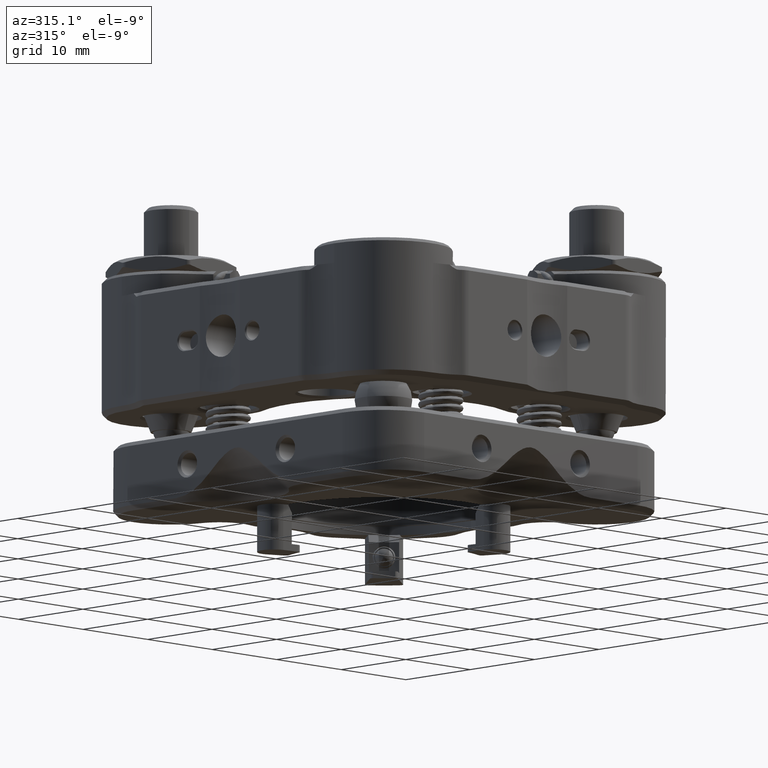
[diagram: clean part render]
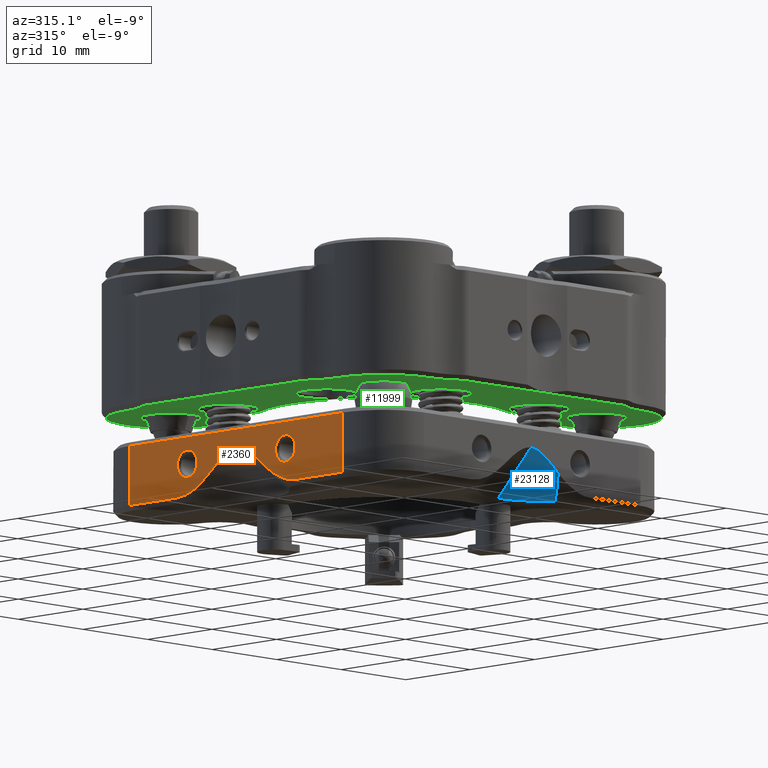
[diagram: same view with three faces highlighted in distinct colors, each labeled with its STEP entity id]
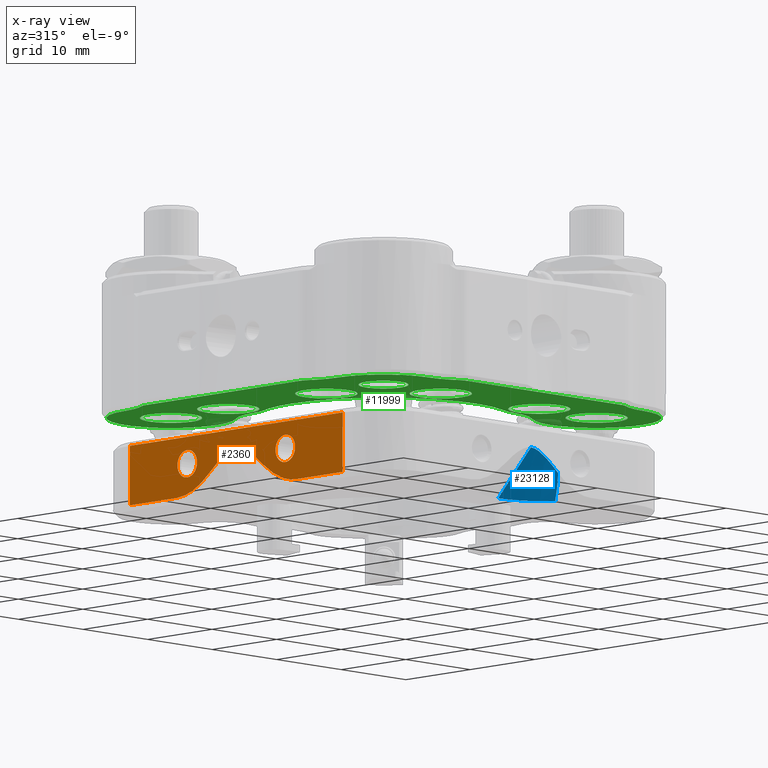
[diagram: x-ray of the same camera — body ghosted, the three highlighted faces saturated]
A machine part, auxiliary view with three faces highlighted in distinct colors.
The next image is the same camera in x-ray (body ghosted, the three faces saturated) — at least one of them is partly hidden behind the body in this view.
Their STEP definitions:

[orange] entity #2360 — the highlighted planar face has unit normal (1, -0, 0).
#70 = CARTESIAN_POINT ( 'NONE',  ( -22.86000000000001009, 4.229481576568355550, -17.76057014813169133 ) ) ;
#152 = LINE ( 'NONE', #4107, #17089 ) ;
#577 = LINE ( 'NONE', #6024, #6643 ) ;
#595 = ORIENTED_EDGE ( 'NONE', *, *, #12178, .F. ) ;
#685 = CARTESIAN_POINT ( 'NONE',  ( -22.86000000000008114, -3.597634822816767386, -17.22644066595375989 ) ) ;
#745 = ORIENTED_EDGE ( 'NONE', *, *, #17298, .T. ) ;
#957 = CARTESIAN_POINT ( 'NONE',  ( -22.86000000000012378, -7.619999999999807372, -17.85200000000059717 ) ) ;
#1491 = CARTESIAN_POINT ( 'NONE',  ( -22.86000000000012733, -7.628391849384790646, -19.70508273283734368 ) ) ;
#1556 = CARTESIAN_POINT ( 'NONE',  ( -22.85999999999998522, 6.959163889735418884, -19.48390881809314479 ) ) ;
#1578 = CARTESIAN_POINT ( 'NONE',  ( -22.86000000000012378, -7.619999999999807372, -16.32700000000059504 ) ) ;
#1695 = AXIS2_PLACEMENT_3D ( 'NONE', #23827, #14586, #6947 ) ;
#1705 = DIRECTION ( 'NONE',  ( -1.000000000000000000, -0.000000000000000000, -0.000000000000000000 ) ) ;
#1881 = AXIS2_PLACEMENT_3D ( 'NONE', #22517, #18330, #20292 ) ;
#1919 = CARTESIAN_POINT ( 'NONE',  ( -22.85999999999996390, 9.229662777454413103, -19.93900000000070349 ) ) ;
#1933 = CARTESIAN_POINT ( 'NONE',  ( -22.86000000000013799, -9.229662777454128886, -19.93900000000070349 ) ) ;
#2360 = ADVANCED_FACE ( 'NONE', ( #8489, #8611, #18088 ), #17970, .F. ) ;
#2654 = CARTESIAN_POINT ( 'NONE',  ( -22.86000000000008114, -2.949250967876838825, -16.71418190035217322 ) ) ;
#3218 = CARTESIAN_POINT ( 'NONE',  ( -22.86000000000012733, -7.406939087338871630, -19.63650124086021265 ) ) ;
#3431 = CARTESIAN_POINT ( 'NONE',  ( -22.86000000000020904, -16.50999999999981327, -19.93900000000070349 ) ) ;
#3520 = CARTESIAN_POINT ( 'NONE',  ( -22.85999999999997456, 8.758351000378873152, -19.93900000000067507 ) ) ;
#3549 = EDGE_LOOP ( 'NONE', ( #595, #22914 ) ) ;
#3698 = CIRCLE ( 'NONE', #7654, 1.525000000000000355 ) ;
#3712 = CARTESIAN_POINT ( 'NONE',  ( -22.86000000000010957, -6.751668379958792876, -19.38633800442222466 ) ) ;
#4107 = CARTESIAN_POINT ( 'NONE',  ( -22.86000000000020904, -16.50999999999981327, -13.33500000000058883 ) ) ;
#4343 = EDGE_CURVE ( 'NONE', #9726, #13690, #152, .T. ) ;
#4532 = CARTESIAN_POINT ( 'NONE',  ( -22.86000000000003496, 1.592808549479525215, -15.80559546031105889 ) ) ;
#4645 = CARTESIAN_POINT ( 'NONE',  ( -22.86000000000001009, 4.229481576568355550, -17.76057014813169133 ) ) ;
#4660 = CARTESIAN_POINT ( 'NONE',  ( -22.86000000000024102, -16.50999999999981682, -25.52700000000059433 ) ) ;
#4771 = CARTESIAN_POINT ( 'NONE',  ( -22.85999999999988930, 16.51000000000024670, -25.52700000000059433 ) ) ;
#4869 = VERTEX_POINT ( 'NONE', #18984 ) ;
#5452 = CARTESIAN_POINT ( 'NONE',  ( -22.86000000000009180, -4.938237052535475513, -18.36817643280802059 ) ) ;
#6024 = CARTESIAN_POINT ( 'NONE',  ( -22.86000000000020904, -16.50999999999981327, -19.93900000000070349 ) ) ;
#6045 = VECTOR ( 'NONE', #10335, 1000.000000000000000 ) ;
#6276 = CARTESIAN_POINT ( 'NONE',  ( -22.85999999999988930, 16.50999999999994117, -19.93900000000070349 ) ) ;
#6495 = CARTESIAN_POINT ( 'NONE',  ( -22.86000000000003496, 1.944302519124479156, -16.01567109791675847 ) ) ;
#6534 = ORIENTED_EDGE ( 'NONE', *, *, #21756, .T. ) ;
#6643 = VECTOR ( 'NONE', #17575, 1000.000000000000000 ) ;
#6712 = EDGE_LOOP ( 'NONE', ( #18223, #18714, #7326, #23973, #10705, #13264, #6534, #745 ) ) ;
#6947 = DIRECTION ( 'NONE',  ( 0.000000000000000000, 0.000000000000000000, 1.000000000000000000 ) ) ;
#7191 = CIRCLE ( 'NONE', #10792, 1.525000000000000355 ) ;
#7236 = VERTEX_POINT ( 'NONE', #7470 ) ;
#7326 = ORIENTED_EDGE ( 'NONE', *, *, #22657, .T. ) ;
#7470 = CARTESIAN_POINT ( 'NONE',  ( -22.86000000000009180, -4.229481576568060675, -17.76057014813168777 ) ) ;
#7654 = AXIS2_PLACEMENT_3D ( 'NONE', #18288, #13020, #14614 ) ;
#7685 = DIRECTION ( 'NONE',  ( 9.694748537171207385E-15, 1.000000000000000000, 0.000000000000000000 ) ) ;
#7819 = VECTOR ( 'NONE', #18184, 1000.000000000000000 ) ;
#8108 = EDGE_CURVE ( 'NONE', #7236, #21044, #10352, .T. ) ;
#8201 = CARTESIAN_POINT ( 'NONE',  ( -22.86000000000004917, -0.4007461880109177699, -15.39096868739139978 ) ) ;
#8489 = FACE_BOUND ( 'NONE', #15102, .T. ) ;
#8611 = FACE_OUTER_BOUND ( 'NONE', #6712, .T. ) ;
#8715 = LINE ( 'NONE', #4660, #6045 ) ;
#9240 = DIRECTION ( 'NONE',  ( 0.000000000000000000, 0.000000000000000000, 1.000000000000000000 ) ) ;
#9484 = CARTESIAN_POINT ( 'NONE',  ( -22.85999999999997812, 7.620000000000189289, -14.80200000000059468 ) ) ;
#9616 = ORIENTED_EDGE ( 'NONE', *, *, #21072, .F. ) ;
#9726 = VERTEX_POINT ( 'NONE', #24072 ) ;
#10317 = CARTESIAN_POINT ( 'NONE',  ( -22.86000000000002075, 3.917564185806425847, -17.49316767527163918 ) ) ;
#10327 = LINE ( 'NONE', #4771, #7819 ) ;
#10335 = DIRECTION ( 'NONE',  ( -0.000000000000000000, 0.000000000000000000, 1.000000000000000000 ) ) ;
#10352 = B_SPLINE_CURVE_WITH_KNOTS ( 'NONE', 3,
 ( #14944, #5452, #14823, #3712, #23934, #3218, #1491, #13115, #12987, #22064 ),
 .UNSPECIFIED., .F., .F.,
 ( 4, 2, 2, 2, 4 ),
 ( 0.000000000000000000, 0.002769708619595131777, 0.003462135774493916348, 0.004154562929392701352, 0.005539417239190271361 ),
 .UNSPECIFIED. ) ;
#10567 = CARTESIAN_POINT ( 'NONE',  ( -22.86000000000001364, 3.601951637394633643, -17.23002469957911487 ) ) ;
#10705 = ORIENTED_EDGE ( 'NONE', *, *, #4343, .T. ) ;
#10722 = LINE ( 'NONE', #3431, #11797 ) ;
#10792 = AXIS2_PLACEMENT_3D ( 'NONE', #1578, #1705, #9240 ) ;
#10838 = B_SPLINE_CURVE_WITH_KNOTS ( 'NONE', 3,
 ( #1919, #3520, #22499, #16602, #1556, #22746, #13172, #70 ),
 .UNSPECIFIED., .F., .F.,
 ( 4, 2, 2, 4 ),
 ( 6.938893903907228378E-18, 0.001386642077695687987, 0.002773284155391369035, 0.005546568310782731132 ),
 .UNSPECIFIED. ) ;
#11348 = VERTEX_POINT ( 'NONE', #18278 ) ;
#11797 = VECTOR ( 'NONE', #16503, 1000.000000000000000 ) ;
#12056 = CARTESIAN_POINT ( 'NONE',  ( -22.86000000000007404, -2.618854091105971005, -16.46626433496506081 ) ) ;
#12178 = EDGE_CURVE ( 'NONE', #14735, #12535, #7191, .T. ) ;
#12219 = DIRECTION ( 'NONE',  ( 1.000000000000000000, -9.694748537171207385E-15, 0.000000000000000000 ) ) ;
#12457 = CARTESIAN_POINT ( 'NONE',  ( -22.86000000000020904, -16.50999999999981327, -25.52700000000059433 ) ) ;
#12535 = VERTEX_POINT ( 'NONE', #957 ) ;
#12539 = CIRCLE ( 'NONE', #1881, 1.525000000000000355 ) ;
#12543 = EDGE_CURVE ( 'NONE', #4869, #9726, #8715, .T. ) ;
#12803 = B_SPLINE_CURVE_WITH_KNOTS ( 'NONE', 3,
 ( #16227, #13770, #685, #2654, #12056, #23372, #19534, #15986, #17685, #8201, #19645, #15857, #15737, #21257, #23232, #4532, #6495, #14020, #21507, #10567, #10317, #4645 ),
 .UNSPECIFIED., .F., .F.,
 ( 4, 2, 2, 2, 2, 2, 2, 2, 2, 2, 4 ),
 ( 0.003324732755800691511, 0.004565652370401299814, 0.005806571985001908985, 0.007047491599602517288, 0.007667951406902821440, 0.008288411214203126459, 0.008908871021503429743, 0.009529330828803734763, 0.01077025044340434307, 0.01201117005800495310, 0.01325208967260556314 ),
 .UNSPECIFIED. ) ;
#12987 = CARTESIAN_POINT ( 'NONE',  ( -22.86000000000013088, -8.758282109641140067, -19.93900000000067152 ) ) ;
#13020 = DIRECTION ( 'NONE',  ( -1.000000000000000000, -0.000000000000000000, -0.000000000000000000 ) ) ;
#13115 = CARTESIAN_POINT ( 'NONE',  ( -22.86000000000013799, -8.300355303882561486, -19.87419358907744993 ) ) ;
#13172 = CARTESIAN_POINT ( 'NONE',  ( -22.86000000000000654, 4.938132215087363441, -18.36808655711086757 ) ) ;
#13264 = ORIENTED_EDGE ( 'NONE', *, *, #21903, .F. ) ;
#13690 = VERTEX_POINT ( 'NONE', #19931 ) ;
#13770 = CARTESIAN_POINT ( 'NONE',  ( -22.86000000000009180, -3.915345317823418547, -17.49126547038309454 ) ) ;
#13990 = VERTEX_POINT ( 'NONE', #6276 ) ;
#14020 = CARTESIAN_POINT ( 'NONE',  ( -22.86000000000002075, 2.626460137870049838, -16.47194224105629701 ) ) ;
#14331 = VERTEX_POINT ( 'NONE', #22863 ) ;
#14431 = EDGE_CURVE ( 'NONE', #12535, #14735, #3698, .T. ) ;
#14586 = DIRECTION ( 'NONE',  ( -1.000000000000000000, -0.000000000000000000, -0.000000000000000000 ) ) ;
#14614 = DIRECTION ( 'NONE',  ( 0.000000000000000000, 0.000000000000000000, 1.000000000000000000 ) ) ;
#14735 = VERTEX_POINT ( 'NONE', #18015 ) ;
#14823 = CARTESIAN_POINT ( 'NONE',  ( -22.86000000000009891, -5.699345662576267735, -18.89226132215419440 ) ) ;
#14944 = CARTESIAN_POINT ( 'NONE',  ( -22.86000000000009180, -4.229481576568060675, -17.76057014813168777 ) ) ;
#15102 = EDGE_LOOP ( 'NONE', ( #18716, #9616 ) ) ;
#15737 = CARTESIAN_POINT ( 'NONE',  ( -22.86000000000004562, 0.4261284073514840509, -15.39512893873771127 ) ) ;
#15857 = CARTESIAN_POINT ( 'NONE',  ( -22.86000000000004917, 0.2210194410077958582, -15.36804623913340606 ) ) ;
#15986 = CARTESIAN_POINT ( 'NONE',  ( -22.86000000000006338, -1.001132595067075748, -15.55173237971501621 ) ) ;
#16144 = DIRECTION ( 'NONE',  ( -9.694748537171207385E-15, -1.000000000000000000, 0.000000000000000000 ) ) ;
#16227 = CARTESIAN_POINT ( 'NONE',  ( -22.86000000000009180, -4.229481576568060675, -17.76057014813168777 ) ) ;
#16503 = DIRECTION ( 'NONE',  ( -9.694748537171207385E-15, -1.000000000000000000, -2.789044477472713610E-31 ) ) ;
#16602 = CARTESIAN_POINT ( 'NONE',  ( -22.85999999999997812, 7.402412177531792814, -19.64811938651006074 ) ) ;
#16739 = VERTEX_POINT ( 'NONE', #22045 ) ;
#17089 = VECTOR ( 'NONE', #7685, 1000.000000000000000 ) ;
#17298 = EDGE_CURVE ( 'NONE', #11348, #14331, #10838, .T. ) ;
#17575 = DIRECTION ( 'NONE',  ( -9.694748537171207385E-15, -1.000000000000000000, -2.789044477472713610E-31 ) ) ;
#17685 = CARTESIAN_POINT ( 'NONE',  ( -22.86000000000005983, -0.8027894956768356627, -15.48365370289159060 ) ) ;
#17970 = PLANE ( 'NONE',  #19037 ) ;
#18015 = CARTESIAN_POINT ( 'NONE',  ( -22.86000000000012378, -7.619999999999807372, -14.80200000000059468 ) ) ;
#18088 = FACE_BOUND ( 'NONE', #3549, .T. ) ;
#18184 = DIRECTION ( 'NONE',  ( -0.000000000000000000, 0.000000000000000000, 1.000000000000000000 ) ) ;
#18223 = ORIENTED_EDGE ( 'NONE', *, *, #20290, .F. ) ;
#18278 = CARTESIAN_POINT ( 'NONE',  ( -22.85999999999996390, 9.229662777454413103, -19.93900000000070349 ) ) ;
#18288 = CARTESIAN_POINT ( 'NONE',  ( -22.86000000000012378, -7.619999999999807372, -16.32700000000059504 ) ) ;
#18330 = DIRECTION ( 'NONE',  ( -1.000000000000000000, -0.000000000000000000, -0.000000000000000000 ) ) ;
#18714 = ORIENTED_EDGE ( 'NONE', *, *, #8108, .T. ) ;
#18716 = ORIENTED_EDGE ( 'NONE', *, *, #18972, .F. ) ;
#18972 = EDGE_CURVE ( 'NONE', #19796, #16739, #21761, .T. ) ;
#18984 = CARTESIAN_POINT ( 'NONE',  ( -22.86000000000024102, -16.50999999999981682, -19.93900000000070349 ) ) ;
#19037 = AXIS2_PLACEMENT_3D ( 'NONE', #12457, #12219, #16144 ) ;
#19534 = CARTESIAN_POINT ( 'NONE',  ( -22.86000000000006693, -1.572199453205341158, -15.79425654322220574 ) ) ;
#19645 = CARTESIAN_POINT ( 'NONE',  ( -22.86000000000005272, -0.1962796670156755907, -15.36601400228406078 ) ) ;
#19796 = VERTEX_POINT ( 'NONE', #9484 ) ;
#19931 = CARTESIAN_POINT ( 'NONE',  ( -22.85999999999988930, 16.51000000000024670, -13.33500000000058883 ) ) ;
#20290 = EDGE_CURVE ( 'NONE', #7236, #14331, #12803, .T. ) ;
#20292 = DIRECTION ( 'NONE',  ( 0.000000000000000000, 0.000000000000000000, 1.000000000000000000 ) ) ;
#21044 = VERTEX_POINT ( 'NONE', #1933 ) ;
#21072 = EDGE_CURVE ( 'NONE', #16739, #19796, #12539, .T. ) ;
#21257 = CARTESIAN_POINT ( 'NONE',  ( -22.86000000000003496, 0.8271567452071758586, -15.49118638754346478 ) ) ;
#21507 = CARTESIAN_POINT ( 'NONE',  ( -22.86000000000002075, 2.956705564381371776, -16.71990106494079953 ) ) ;
#21756 = EDGE_CURVE ( 'NONE', #13990, #11348, #577, .T. ) ;
#21761 = CIRCLE ( 'NONE', #1695, 1.525000000000000355 ) ;
#21903 = EDGE_CURVE ( 'NONE', #13990, #13690, #10327, .T. ) ;
#22045 = CARTESIAN_POINT ( 'NONE',  ( -22.85999999999997812, 7.620000000000189289, -17.85200000000059717 ) ) ;
#22064 = CARTESIAN_POINT ( 'NONE',  ( -22.86000000000013799, -9.229662777454128886, -19.93900000000070349 ) ) ;
#22499 = CARTESIAN_POINT ( 'NONE',  ( -22.85999999999997812, 8.299961974694802791, -19.87418613520488009 ) ) ;
#22517 = CARTESIAN_POINT ( 'NONE',  ( -22.85999999999997812, 7.620000000000189289, -16.32700000000059504 ) ) ;
#22657 = EDGE_CURVE ( 'NONE', #21044, #4869, #10722, .T. ) ;
#22746 = CARTESIAN_POINT ( 'NONE',  ( -22.86000000000000298, 5.698729411158517166, -18.89167187656438429 ) ) ;
#22863 = CARTESIAN_POINT ( 'NONE',  ( -22.86000000000001009, 4.229481576568355550, -17.76057014813169133 ) ) ;
#22914 = ORIENTED_EDGE ( 'NONE', *, *, #14431, .F. ) ;
#23232 = CARTESIAN_POINT ( 'NONE',  ( -22.86000000000003851, 1.025063637092831215, -15.56071604602862557 ) ) ;
#23372 = CARTESIAN_POINT ( 'NONE',  ( -22.86000000000006338, -1.930427279923352613, -16.00699962772288387 ) ) ;
#23827 = CARTESIAN_POINT ( 'NONE',  ( -22.85999999999997812, 7.620000000000189289, -16.32700000000059504 ) ) ;
#23934 = CARTESIAN_POINT ( 'NONE',  ( -22.86000000000012022, -6.968623685975321891, -19.47722792319549612 ) ) ;
#23973 = ORIENTED_EDGE ( 'NONE', *, *, #12543, .T. ) ;
#24072 = CARTESIAN_POINT ( 'NONE',  ( -22.86000000000024102, -16.50999999999981682, -13.33500000000058883 ) ) ;

[blue] entity #23128 — the highlighted conical surface has half-angle 45 deg.
#141 = ORIENTED_EDGE ( 'NONE', *, *, #9574, .F. ) ;
#751 = CONICAL_SURFACE ( 'NONE', #11811, 9.524999999999987921, 0.7853981633974471688 ) ;
#956 = FACE_OUTER_BOUND ( 'NONE', #1494, .T. ) ;
#1137 = CARTESIAN_POINT ( 'NONE',  ( 2.622963139611198091, -22.85999999999999233, -16.46929230700211377 ) ) ;
#1194 = CARTESIAN_POINT ( 'NONE',  ( -3.396974368463647391E-13, -17.78000000000001535, -20.44700000000059248 ) ) ;
#1289 = ORIENTED_EDGE ( 'NONE', *, *, #24141, .T. ) ;
#1494 = EDGE_LOOP ( 'NONE', ( #1289, #6246, #141, #21741 ) ) ;
#1536 = CARTESIAN_POINT ( 'NONE',  ( 4.229481576567869716, -22.86000000000000298, -17.76057014813174817 ) ) ;
#1650 = VERTEX_POINT ( 'NONE', #1536 ) ;
#2150 = LINE ( 'NONE', #8643, #23555 ) ;
#2263 = CARTESIAN_POINT ( 'NONE',  ( -4.406197628981090020E-13, -25.39999999999999858, -20.44700000000059248 ) ) ;
#2851 = CARTESIAN_POINT ( 'NONE',  ( 1.936523536324799677, -22.85999999999999943, -16.01078407317872276 ) ) ;
#3042 = B_SPLINE_CURVE_WITH_KNOTS ( 'NONE', 3,
 ( #6773, #23269, #15891, #4561 ),
 .UNSPECIFIED., .F., .F.,
 ( 4, 4 ),
 ( 5.553824967135426632E-18, 0.003885240765737124624 ),
 .UNSPECIFIED. ) ;
#4561 = CARTESIAN_POINT ( 'NONE',  ( 4.229481576567869716, -22.86000000000000298, -17.76057014813174817 ) ) ;
#6246 = ORIENTED_EDGE ( 'NONE', *, *, #22034, .T. ) ;
#6681 = VERTEX_POINT ( 'NONE', #15687 ) ;
#6689 = CARTESIAN_POINT ( 'NONE',  ( 1.010252391307756348, -22.85999999999998522, -15.55514775209780609 ) ) ;
#6773 = CARTESIAN_POINT ( 'NONE',  ( 5.963776396871508290, -20.65681846350861406, -20.44700000000059248 ) ) ;
#8585 = CARTESIAN_POINT ( 'NONE',  ( -4.406197628981090020E-13, -25.40000000000000213, -22.35200000000060072 ) ) ;
#8643 = CARTESIAN_POINT ( 'NONE',  ( -3.142500148989315220E-13, -15.87500000000001421, -22.35200000000059717 ) ) ;
#8650 = CARTESIAN_POINT ( 'NONE',  ( -4.075572291619721219E-13, -22.85999999999998167, -15.36700000000062083 ) ) ;
#9574 = EDGE_CURVE ( 'NONE', #6681, #23058, #17389, .T. ) ;
#9798 = DIRECTION ( 'NONE',  ( -0.000000000000000000, -0.000000000000000000, 1.000000000000000000 ) ) ;
#10046 = DIRECTION ( 'NONE',  ( 1.326716514427062224E-14, 1.000000000000000000, 0.000000000000000000 ) ) ;
#10274 = CARTESIAN_POINT ( 'NONE',  ( 3.916121610563087607, -22.86000000000000654, -17.49193097543176734 ) ) ;
#10408 = CARTESIAN_POINT ( 'NONE',  ( 1.579349331885235408, -22.85999999999999233, -15.79823970164770053 ) ) ;
#10523 = CARTESIAN_POINT ( 'NONE',  ( 3.599203654790401163, -22.86000000000000298, -17.22775083071130098 ) ) ;
#11265 = CARTESIAN_POINT ( 'NONE',  ( -4.075572291619721219E-13, -22.85999999999998167, -15.36700000000062083 ) ) ;
#11811 = AXIS2_PLACEMENT_3D ( 'NONE', #8585, #12554, #20019 ) ;
#12256 = CARTESIAN_POINT ( 'NONE',  ( 4.229481576567869716, -22.86000000000000298, -17.76057014813174817 ) ) ;
#12554 = DIRECTION ( 'NONE',  ( 9.106159978881498623E-17, 4.553079989440436725E-16, -1.000000000000000000 ) ) ;
#14722 = B_SPLINE_CURVE_WITH_KNOTS ( 'NONE', 3,
 ( #12256, #10274, #10523, #18007, #1137, #2851, #10408, #6689, #23319, #18254, #17894, #8650 ),
 .UNSPECIFIED., .F., .F.,
 ( 4, 2, 2, 2, 2, 4 ),
 ( 0.003324732755800565744, 0.004562585812941631624, 0.005800438870082696638, 0.007038291927223761651, 0.007657218455794296760, 0.008276144984364831869 ),
 .UNSPECIFIED. ) ;
#15687 = CARTESIAN_POINT ( 'NONE',  ( 5.963776396871508290, -20.65681846350861406, -20.44700000000059248 ) ) ;
#15891 = CARTESIAN_POINT ( 'NONE',  ( 4.861317656568298062, -22.17070978866695796, -18.65710877305317084 ) ) ;
#16437 = VERTEX_POINT ( 'NONE', #11265 ) ;
#17389 = CIRCLE ( 'NONE', #22095, 7.619999999999984119 ) ;
#17894 = CARTESIAN_POINT ( 'NONE',  ( 0.2079706813006362287, -22.85999999999997812, -15.36700000000061905 ) ) ;
#18007 = CARTESIAN_POINT ( 'NONE',  ( 2.952488741835886277, -22.85999999999999943, -16.71666974125260907 ) ) ;
#18254 = CARTESIAN_POINT ( 'NONE',  ( 0.4117895150834524620, -22.85999999999998522, -15.39277718506362191 ) ) ;
#20019 = DIRECTION ( 'NONE',  ( 1.326716514427061908E-14, 1.000000000000000000, 3.642463991552355395E-16 ) ) ;
#20863 = EDGE_CURVE ( 'NONE', #6681, #1650, #3042, .T. ) ;
#21741 = ORIENTED_EDGE ( 'NONE', *, *, #20863, .T. ) ;
#22034 = EDGE_CURVE ( 'NONE', #16437, #23058, #2150, .T. ) ;
#22095 = AXIS2_PLACEMENT_3D ( 'NONE', #2263, #9798, #10046 ) ;
#22189 = DIRECTION ( 'NONE',  ( 9.445692715351911011E-15, 0.7071067811865470176, -0.7071067811865479058 ) ) ;
#23058 = VERTEX_POINT ( 'NONE', #1194 ) ;
#23128 = ADVANCED_FACE ( 'NONE', ( #956 ), #751, .F. ) ;
#23269 = CARTESIAN_POINT ( 'NONE',  ( 5.432130625370993116, -21.42693092210628691, -19.55154072201974458 ) ) ;
#23319 = CARTESIAN_POINT ( 'NONE',  ( 0.8126041441004485666, -22.85999999999998877, -15.48669311268612603 ) ) ;
#23555 = VECTOR ( 'NONE', #22189, 1000.000000000000114 ) ;
#24141 = EDGE_CURVE ( 'NONE', #1650, #16437, #14722, .T. ) ;

[green] entity #11999 — the highlighted planar face has unit normal (0, 0, -1).
#76 = CIRCLE ( 'NONE', #11110, 1.079499999999983251 ) ;
#256 = ORIENTED_EDGE ( 'NONE', *, *, #15360, .T. ) ;
#276 = DIRECTION ( 'NONE',  ( 0.000000000000000000, 0.000000000000000000, 1.000000000000000000 ) ) ;
#291 = CARTESIAN_POINT ( 'NONE',  ( 32.99115173361341391, 12.11409739724833301, 25.67670909685329406 ) ) ;
#378 = DIRECTION ( 'NONE',  ( 0.000000000000000000, 0.000000000000000000, 1.000000000000000000 ) ) ;
#420 = CIRCLE ( 'NONE', #1984, 14.22400000000003395 ) ;
#456 = VERTEX_POINT ( 'NONE', #22498 ) ;
#541 = AXIS2_PLACEMENT_3D ( 'NONE', #15967, #12523, #23471 ) ;
#571 = EDGE_CURVE ( 'NONE', #7272, #456, #2992, .T. ) ;
#608 = DIRECTION ( 'NONE',  ( -1.000000000000000000, 0.000000000000000000, 0.000000000000000000 ) ) ;
#620 = AXIS2_PLACEMENT_3D ( 'NONE', #15238, #20381, #20504 ) ;
#807 = VERTEX_POINT ( 'NONE', #24303 ) ;
#857 = ORIENTED_EDGE ( 'NONE', *, *, #21646, .T. ) ;
#860 = DIRECTION ( 'NONE',  ( -0.000000000000000000, 0.000000000000000000, -1.000000000000000000 ) ) ;
#1002 = DIRECTION ( 'NONE',  ( 0.000000000000000000, 0.000000000000000000, -1.000000000000000000 ) ) ;
#1158 = ORIENTED_EDGE ( 'NONE', *, *, #11828, .T. ) ;
#1210 = EDGE_CURVE ( 'NONE', #1631, #9274, #1786, .T. ) ;
#1217 = FACE_BOUND ( 'NONE', #8173, .T. ) ;
#1437 = VERTEX_POINT ( 'NONE', #19251 ) ;
#1533 = EDGE_LOOP ( 'NONE', ( #8817, #3852, #7316, #20401, #19993, #256, #11021, #1626, #6859, #21020, #9360, #11342, #2234, #4617, #2301, #23736, #857, #4827, #14610, #7793, #12319, #15106, #3814 ) ) ;
#1626 = ORIENTED_EDGE ( 'NONE', *, *, #6620, .T. ) ;
#1631 = VERTEX_POINT ( 'NONE', #22432 ) ;
#1633 = AXIS2_PLACEMENT_3D ( 'NONE', #24369, #7484, #18935 ) ;
#1638 = AXIS2_PLACEMENT_3D ( 'NONE', #18502, #12768, #8921 ) ;
#1770 = EDGE_CURVE ( 'NONE', #18695, #9725, #22263, .T. ) ;
#1786 = CIRCLE ( 'NONE', #12835, 7.111999999999986777 ) ;
#1827 = CARTESIAN_POINT ( 'NONE',  ( 38.45215173361344796, 12.11409739724833301, 25.67670909685329406 ) ) ;
#1880 = EDGE_LOOP ( 'NONE', ( #8652, #18503 ) ) ;
#1973 = DIRECTION ( 'NONE',  ( -1.000000000000000000, 0.000000000000000000, 0.000000000000000000 ) ) ;
#1984 = AXIS2_PLACEMENT_3D ( 'NONE', #17329, #2050, #8199 ) ;
#2022 = CIRCLE ( 'NONE', #1638, 3.428999999999973625 ) ;
#2042 = AXIS2_PLACEMENT_3D ( 'NONE', #21441, #1002, #8628 ) ;
#2050 = DIRECTION ( 'NONE',  ( 0.000000000000000000, 0.000000000000000000, 1.000000000000000000 ) ) ;
#2056 = EDGE_CURVE ( 'NONE', #18346, #23926, #3777, .T. ) ;
#2128 = CARTESIAN_POINT ( 'NONE',  ( -5.235848266386701866, 12.11409739724832235, 25.67670909685329406 ) ) ;
#2208 = EDGE_CURVE ( 'NONE', #17927, #16455, #9677, .T. ) ;
#2210 = LINE ( 'NONE', #3701, #8975 ) ;
#2234 = ORIENTED_EDGE ( 'NONE', *, *, #15796, .T. ) ;
#2250 = CIRCLE ( 'NONE', #5417, 3.429000000000036241 ) ;
#2301 = ORIENTED_EDGE ( 'NONE', *, *, #15427, .T. ) ;
#2480 = CIRCLE ( 'NONE', #9596, 3.428999999999973625 ) ;
#2765 = DIRECTION ( 'NONE',  ( 2.411766268242936995E-14, 1.000000000000000000, 0.000000000000000000 ) ) ;
#2798 = AXIS2_PLACEMENT_3D ( 'NONE', #13296, #22633, #17213 ) ;
#2992 = CIRCLE ( 'NONE', #16379, 3.959632750360909892 ) ;
#3035 = EDGE_CURVE ( 'NONE', #8475, #1437, #12723, .T. ) ;
#3236 = VERTEX_POINT ( 'NONE', #10639 ) ;
#3306 = AXIS2_PLACEMENT_3D ( 'NONE', #15087, #276, #13359 ) ;
#3316 = CARTESIAN_POINT ( 'NONE',  ( 13.20522010324108209, 4.811597397248193353, 25.67670909685329406 ) ) ;
#3667 = CARTESIAN_POINT ( 'NONE',  ( 8.861151733613215953, 5.002097397248359556, 25.67670909685329406 ) ) ;
#3701 = CARTESIAN_POINT ( 'NONE',  ( 28.47421683122239600, 3.732097397248397730, 25.67670909685329406 ) ) ;
#3777 = CIRCLE ( 'NONE', #17540, 7.111999999999985889 ) ;
#3814 = ORIENTED_EDGE ( 'NONE', *, *, #22377, .T. ) ;
#3833 = CARTESIAN_POINT ( 'NONE',  ( 32.99115173361346365, 12.11409739724832946, 25.67670909685329406 ) ) ;
#3852 = ORIENTED_EDGE ( 'NONE', *, *, #6762, .T. ) ;
#3900 = DIRECTION ( 'NONE',  ( -0.000000000000000000, -0.000000000000000000, -1.000000000000000000 ) ) ;
#3969 = CIRCLE ( 'NONE', #7121, 7.111999999999976119 ) ;
#4216 = VERTEX_POINT ( 'NONE', #21165 ) ;
#4282 = EDGE_CURVE ( 'NONE', #9274, #15391, #8431, .T. ) ;
#4398 = LINE ( 'NONE', #19892, #23517 ) ;
#4434 = CIRCLE ( 'NONE', #18189, 3.429000000000036241 ) ;
#4494 = CARTESIAN_POINT ( 'NONE',  ( 5.432151733613610034, 36.24409739724833202, 25.67670909685329406 ) ) ;
#4502 = CARTESIAN_POINT ( 'NONE',  ( 8.861151733613645831, 36.24409739724833202, 25.67670909685329406 ) ) ;
#4553 = CARTESIAN_POINT ( 'NONE',  ( 15.97315173361363350, 45.13409739724845338, 25.67670909685329406 ) ) ;
#4617 = ORIENTED_EDGE ( 'NONE', *, *, #24226, .T. ) ;
#4685 = DIRECTION ( 'NONE',  ( -1.000000000000000000, 0.000000000000000000, 0.000000000000000000 ) ) ;
#4700 = CARTESIAN_POINT ( 'NONE',  ( 12.29015173361367985, 21.00409739724833358, 25.67670909685329406 ) ) ;
#4744 = DIRECTION ( 'NONE',  ( 0.000000000000000000, 0.000000000000000000, 1.000000000000000000 ) ) ;
#4791 = CIRCLE ( 'NONE', #20501, 3.429000000000042903 ) ;
#4793 = CARTESIAN_POINT ( 'NONE',  ( 8.861151733613292336, 12.11409739724833301, 25.67670909685329406 ) ) ;
#4827 = ORIENTED_EDGE ( 'NONE', *, *, #16487, .T. ) ;
#4936 = CARTESIAN_POINT ( 'NONE',  ( 41.88115173361342158, 12.11409739724833301, 25.67670909685329406 ) ) ;
#5064 = EDGE_LOOP ( 'NONE', ( #15774, #13081 ) ) ;
#5107 = DIRECTION ( 'NONE',  ( -1.000000000000000000, 0.000000000000000000, 0.000000000000000000 ) ) ;
#5111 = DIRECTION ( 'NONE',  ( -1.000000000000000000, 0.000000000000000000, 0.000000000000000000 ) ) ;
#5117 = DIRECTION ( 'NONE',  ( -1.000000000000000000, 0.000000000000000000, 0.000000000000000000 ) ) ;
#5177 = CIRCLE ( 'NONE', #17752, 3.959632750360917886 ) ;
#5179 = FACE_BOUND ( 'NONE', #1880, .T. ) ;
#5201 = EDGE_CURVE ( 'NONE', #16400, #18695, #18215, .T. ) ;
#5251 = DIRECTION ( 'NONE',  ( -1.000000000000000000, 0.000000000000000000, 0.000000000000000000 ) ) ;
#5277 = CIRCLE ( 'NONE', #15110, 6.985000000000036735 ) ;
#5360 = EDGE_LOOP ( 'NONE', ( #10653, #24315 ) ) ;
#5417 = AXIS2_PLACEMENT_3D ( 'NONE', #16613, #20528, #14895 ) ;
#5437 = VERTEX_POINT ( 'NONE', #20294 ) ;
#5438 = CARTESIAN_POINT ( 'NONE',  ( 17.75115173361346876, 12.11409739724833301, 25.67670909685329406 ) ) ;
#5660 = CARTESIAN_POINT ( 'NONE',  ( 8.861151733613292336, 12.11409739724833301, 25.67670909685329406 ) ) ;
#5679 = EDGE_CURVE ( 'NONE', #12106, #15981, #2480, .T. ) ;
#5728 = CARTESIAN_POINT ( 'NONE',  ( 11.14715173361343581, 28.62409739724833102, 25.67670909685329406 ) ) ;
#5895 = CARTESIAN_POINT ( 'NONE',  ( 41.88115173361342158, 12.11409739724833301, 25.67670909685329406 ) ) ;
#5962 = CIRCLE ( 'NONE', #19709, 7.111999999999986777 ) ;
#6073 = DIRECTION ( 'NONE',  ( -1.000000000000000000, 0.000000000000000000, 0.000000000000000000 ) ) ;
#6256 = EDGE_CURVE ( 'NONE', #8747, #3236, #11196, .T. ) ;
#6279 = CIRCLE ( 'NONE', #12570, 1.079499999999985027 ) ;
#6296 = CARTESIAN_POINT ( 'NONE',  ( 21.18015173361350989, 12.11409739724833301, 25.67670909685329406 ) ) ;
#6435 = EDGE_LOOP ( 'NONE', ( #6941, #7116 ) ) ;
#6530 = DIRECTION ( 'NONE',  ( -1.000000000000000000, 0.000000000000000000, 0.000000000000000000 ) ) ;
#6549 = CARTESIAN_POINT ( 'NONE',  ( 13.20522010324109452, 3.732097397248206772, 25.67670909685329406 ) ) ;
#6620 = EDGE_CURVE ( 'NONE', #3236, #18346, #18501, .T. ) ;
#6673 = EDGE_LOOP ( 'NONE', ( #8450, #10891 ) ) ;
#6762 = EDGE_CURVE ( 'NONE', #21083, #8475, #3969, .T. ) ;
#6771 = CIRCLE ( 'NONE', #1633, 3.429000000000042903 ) ;
#6797 = DIRECTION ( 'NONE',  ( -1.000000000000000000, 0.000000000000000000, 0.000000000000000000 ) ) ;
#6817 = CARTESIAN_POINT ( 'NONE',  ( 0.4791517336137848804, 40.79002902762140792, 25.67670909685329406 ) ) ;
#6859 = ORIENTED_EDGE ( 'NONE', *, *, #2056, .T. ) ;
#6909 = CARTESIAN_POINT ( 'NONE',  ( 0.6491517336137744287, 41.37151849442186347, 25.67670909685329406 ) ) ;
#6919 = DIRECTION ( 'NONE',  ( 0.000000000000000000, 0.000000000000000000, 1.000000000000000000 ) ) ;
#6941 = ORIENTED_EDGE ( 'NONE', *, *, #8974, .T. ) ;
#7116 = ORIENTED_EDGE ( 'NONE', *, *, #16668, .T. ) ;
#7121 = AXIS2_PLACEMENT_3D ( 'NONE', #5660, #11214, #20542 ) ;
#7272 = VERTEX_POINT ( 'NONE', #11187 ) ;
#7289 = CARTESIAN_POINT ( 'NONE',  ( 8.861151733613644055, 21.00409739724833358, 25.67670909685329406 ) ) ;
#7316 = ORIENTED_EDGE ( 'NONE', *, *, #3035, .T. ) ;
#7484 = DIRECTION ( 'NONE',  ( 0.000000000000000000, 0.000000000000000000, 1.000000000000000000 ) ) ;
#7611 = AXIS2_PLACEMENT_3D ( 'NONE', #10106, #7875, #13582 ) ;
#7646 = EDGE_CURVE ( 'NONE', #1437, #4216, #76, .T. ) ;
#7676 = CARTESIAN_POINT ( 'NONE',  ( 6.111151733613293224, 12.11409739724833301, 25.67670909685329406 ) ) ;
#7783 = CARTESIAN_POINT ( 'NONE',  ( 8.861151733613644055, 21.00409739724833358, 25.67670909685329406 ) ) ;
#7793 = ORIENTED_EDGE ( 'NONE', *, *, #4282, .T. ) ;
#7816 = VERTEX_POINT ( 'NONE', #23075 ) ;
#7875 = DIRECTION ( 'NONE',  ( 0.000000000000000000, 0.000000000000000000, 1.000000000000000000 ) ) ;
#7900 = CARTESIAN_POINT ( 'NONE',  ( 41.88115173361342158, 12.11409739724833301, 25.67670909685329406 ) ) ;
#8069 = DIRECTION ( 'NONE',  ( -1.000000000000000000, -3.973597081693452688E-15, 0.000000000000000000 ) ) ;
#8091 = DIRECTION ( 'NONE',  ( 0.000000000000000000, 0.000000000000000000, 1.000000000000000000 ) ) ;
#8173 = EDGE_LOOP ( 'NONE', ( #21613, #1158 ) ) ;
#8199 = DIRECTION ( 'NONE',  ( -1.000000000000000000, 0.000000000000000000, 0.000000000000000000 ) ) ;
#8431 = CIRCLE ( 'NONE', #3306, 6.985000000000067821 ) ;
#8450 = ORIENTED_EDGE ( 'NONE', *, *, #13215, .T. ) ;
#8475 = VERTEX_POINT ( 'NONE', #21304 ) ;
#8577 = CARTESIAN_POINT ( 'NONE',  ( 11.61115173361329234, 12.11409739724833301, 25.67670909685329406 ) ) ;
#8628 = DIRECTION ( 'NONE',  ( -1.000000000000000000, 0.000000000000000000, 0.000000000000000000 ) ) ;
#8652 = ORIENTED_EDGE ( 'NONE', *, *, #19969, .F. ) ;
#8740 = DIRECTION ( 'NONE',  ( -0.000000000000000000, -0.000000000000000000, -1.000000000000000000 ) ) ;
#8747 = VERTEX_POINT ( 'NONE', #6909 ) ;
#8755 = AXIS2_PLACEMENT_3D ( 'NONE', #2128, #19026, #11152 ) ;
#8785 = DIRECTION ( 'NONE',  ( -1.000000000000000000, 0.000000000000000000, 0.000000000000000000 ) ) ;
#8817 = ORIENTED_EDGE ( 'NONE', *, *, #18765, .T. ) ;
#8921 = DIRECTION ( 'NONE',  ( -1.000000000000000000, 0.000000000000000000, 0.000000000000000000 ) ) ;
#8974 = EDGE_CURVE ( 'NONE', #5437, #11889, #4791, .T. ) ;
#8975 = VECTOR ( 'NONE', #14811, 1000.000000000000000 ) ;
#9037 = CARTESIAN_POINT ( 'NONE',  ( 12.29015173361362123, 45.13409739724845338, 25.67670909685329406 ) ) ;
#9061 = DIRECTION ( 'NONE',  ( -0.000000000000000000, -0.000000000000000000, -1.000000000000000000 ) ) ;
#9177 = CARTESIAN_POINT ( 'NONE',  ( 1.558651733613205970, 16.45816576687619204, 25.67670909685329406 ) ) ;
#9220 = VERTEX_POINT ( 'NONE', #8577 ) ;
#9274 = VERTEX_POINT ( 'NONE', #16714 ) ;
#9360 = ORIENTED_EDGE ( 'NONE', *, *, #5201, .T. ) ;
#9393 = DIRECTION ( 'NONE',  ( -0.000000000000000000, -0.000000000000000000, -1.000000000000000000 ) ) ;
#9566 = EDGE_CURVE ( 'NONE', #23648, #18902, #15819, .T. ) ;
#9596 = AXIS2_PLACEMENT_3D ( 'NONE', #5895, #8091, #13666 ) ;
#9677 = CIRCLE ( 'NONE', #16369, 3.429000000000036241 ) ;
#9725 = VERTEX_POINT ( 'NONE', #16555 ) ;
#9735 = CIRCLE ( 'NONE', #23508, 2.750000000000000000 ) ;
#9763 = CARTESIAN_POINT ( 'NONE',  ( 5.432151733613607369, 21.00409739724833358, 25.67670909685329406 ) ) ;
#10069 = CARTESIAN_POINT ( 'NONE',  ( 1.558651733613747314, 40.79002902762137950, 25.67670909685329406 ) ) ;
#10106 = CARTESIAN_POINT ( 'NONE',  ( 19.80578326939348344, 36.24925358624009419, 25.67670909685329406 ) ) ;
#10186 = CIRCLE ( 'NONE', #23950, 6.985000000000036735 ) ;
#10253 = VERTEX_POINT ( 'NONE', #12369 ) ;
#10268 = DIRECTION ( 'NONE',  ( -1.000000000000000000, 0.000000000000000000, 0.000000000000000000 ) ) ;
#10298 = CIRCLE ( 'NONE', #24059, 1.079499999999962379 ) ;
#10320 = AXIS2_PLACEMENT_3D ( 'NONE', #4502, #12032, #20996 ) ;
#10589 = DIRECTION ( 'NONE',  ( -1.000000000000000000, 0.000000000000000000, 0.000000000000000000 ) ) ;
#10639 = CARTESIAN_POINT ( 'NONE',  ( 1.749151733613660387, 45.13409739724860970, 25.67670909685329406 ) ) ;
#10649 = DIRECTION ( 'NONE',  ( -0.000000000000000000, -0.000000000000000000, -1.000000000000000000 ) ) ;
#10653 = ORIENTED_EDGE ( 'NONE', *, *, #5679, .T. ) ;
#10881 = ORIENTED_EDGE ( 'NONE', *, *, #2208, .T. ) ;
#10891 = ORIENTED_EDGE ( 'NONE', *, *, #18876, .T. ) ;
#11002 = DIRECTION ( 'NONE',  ( 0.000000000000000000, 0.000000000000000000, 1.000000000000000000 ) ) ;
#11021 = ORIENTED_EDGE ( 'NONE', *, *, #6256, .T. ) ;
#11069 = AXIS2_PLACEMENT_3D ( 'NONE', #10069, #3900, #20891 ) ;
#11110 = AXIS2_PLACEMENT_3D ( 'NONE', #9177, #22098, #5251 ) ;
#11152 = DIRECTION ( 'NONE',  ( -1.000000000000000000, 0.000000000000000000, 0.000000000000000000 ) ) ;
#11187 = CARTESIAN_POINT ( 'NONE',  ( 31.33183524982933932, 15.70928311211386408, 25.67670909685329406 ) ) ;
#11196 = CIRCLE ( 'NONE', #541, 6.985000000000060716 ) ;
#11214 = DIRECTION ( 'NONE',  ( -0.000000000000000000, -0.000000000000000000, -1.000000000000000000 ) ) ;
#11257 = EDGE_CURVE ( 'NONE', #23926, #16400, #5277, .T. ) ;
#11342 = ORIENTED_EDGE ( 'NONE', *, *, #1770, .T. ) ;
#11500 = DIRECTION ( 'NONE',  ( 0.000000000000000000, 0.000000000000000000, 1.000000000000000000 ) ) ;
#11556 = CIRCLE ( 'NONE', #2798, 6.985000000000029630 ) ;
#11623 = CARTESIAN_POINT ( 'NONE',  ( 37.39870800914081883, 17.63571330719133101, 25.67670909685329406 ) ) ;
#11828 = EDGE_CURVE ( 'NONE', #17059, #7816, #20949, .T. ) ;
#11837 = ORIENTED_EDGE ( 'NONE', *, *, #17875, .T. ) ;
#11889 = VERTEX_POINT ( 'NONE', #6296 ) ;
#11999 = ADVANCED_FACE ( 'NONE', ( #5179, #23409, #14537, #21545, #15903, #21799, #1217, #18089 ), #12458, .T. ) ;
#12032 = DIRECTION ( 'NONE',  ( 0.000000000000000000, 0.000000000000000000, 1.000000000000000000 ) ) ;
#12106 = VERTEX_POINT ( 'NONE', #1827 ) ;
#12283 = CARTESIAN_POINT ( 'NONE',  ( 12.29015173361368340, 36.24409739724833202, 25.67670909685329406 ) ) ;
#12319 = ORIENTED_EDGE ( 'NONE', *, *, #16254, .T. ) ;
#12328 = AXIS2_PLACEMENT_3D ( 'NONE', #3316, #860, #4685 ) ;
#12332 = DIRECTION ( 'NONE',  ( 0.000000000000000000, 0.000000000000000000, 1.000000000000000000 ) ) ;
#12369 = CARTESIAN_POINT ( 'NONE',  ( 36.42015173361350122, 12.11409739724832946, 25.67670909685329406 ) ) ;
#12458 = PLANE ( 'NONE',  #12328 ) ;
#12522 = DIRECTION ( 'NONE',  ( -0.000000000000000000, -0.000000000000000000, -1.000000000000000000 ) ) ;
#12523 = DIRECTION ( 'NONE',  ( 0.000000000000000000, 0.000000000000000000, 1.000000000000000000 ) ) ;
#12570 = AXIS2_PLACEMENT_3D ( 'NONE', #23279, #13810, #6530 ) ;
#12723 = CIRCLE ( 'NONE', #8755, 6.985000000000022524 ) ;
#12768 = DIRECTION ( 'NONE',  ( 0.000000000000000000, 0.000000000000000000, 1.000000000000000000 ) ) ;
#12835 = AXIS2_PLACEMENT_3D ( 'NONE', #4936, #8740, #23782 ) ;
#12903 = VERTEX_POINT ( 'NONE', #6817 ) ;
#12982 = DIRECTION ( 'NONE',  ( 0.000000000000000000, 0.000000000000000000, 1.000000000000000000 ) ) ;
#13081 = ORIENTED_EDGE ( 'NONE', *, *, #9566, .T. ) ;
#13124 = CARTESIAN_POINT ( 'NONE',  ( 37.53708336398627665, 4.811597397248477570, 25.67670909685329406 ) ) ;
#13215 = EDGE_CURVE ( 'NONE', #807, #10253, #17446, .T. ) ;
#13296 = CARTESIAN_POINT ( 'NONE',  ( 8.861151733613136017, -1.982902602751669630, 25.67670909685329406 ) ) ;
#13359 = DIRECTION ( 'NONE',  ( -1.000000000000000000, -5.339521078525553729E-15, 0.000000000000000000 ) ) ;
#13562 = DIRECTION ( 'NONE',  ( -1.000000000000000000, 1.707404996040160419E-15, 0.000000000000000000 ) ) ;
#13582 = DIRECTION ( 'NONE',  ( -1.000000000000000000, 0.000000000000000000, 0.000000000000000000 ) ) ;
#13666 = DIRECTION ( 'NONE',  ( -1.000000000000000000, 0.000000000000000000, 0.000000000000000000 ) ) ;
#13810 = DIRECTION ( 'NONE',  ( -0.000000000000000000, -0.000000000000000000, -1.000000000000000000 ) ) ;
#13904 = DIRECTION ( 'NONE',  ( 0.000000000000000000, 0.000000000000000000, 1.000000000000000000 ) ) ;
#14537 = FACE_BOUND ( 'NONE', #15729, .T. ) ;
#14607 = AXIS2_PLACEMENT_3D ( 'NONE', #19598, #20298, #10268 ) ;
#14610 = ORIENTED_EDGE ( 'NONE', *, *, #1210, .T. ) ;
#14703 = CARTESIAN_POINT ( 'NONE',  ( 8.861151733613645831, 45.13409739724845338, 25.67670909685329406 ) ) ;
#14811 = DIRECTION ( 'NONE',  ( -1.000000000000000000, -1.339870149023852975E-14, 0.000000000000000000 ) ) ;
#14895 = DIRECTION ( 'NONE',  ( -1.000000000000000000, 0.000000000000000000, 0.000000000000000000 ) ) ;
#15002 = VERTEX_POINT ( 'NONE', #22806 ) ;
#15050 = CIRCLE ( 'NONE', #20908, 3.429000000000042903 ) ;
#15087 = CARTESIAN_POINT ( 'NONE',  ( 41.88115173361359211, -1.982902602751784205, 25.67670909685329406 ) ) ;
#15106 = ORIENTED_EDGE ( 'NONE', *, *, #21390, .T. ) ;
#15110 = AXIS2_PLACEMENT_3D ( 'NONE', #21238, #4744, #8069 ) ;
#15238 = CARTESIAN_POINT ( 'NONE',  ( 8.861151733613546355, 36.24409739724845991, 25.67670909685329406 ) ) ;
#15360 = EDGE_CURVE ( 'NONE', #12903, #8747, #20869, .T. ) ;
#15391 = VERTEX_POINT ( 'NONE', #22866 ) ;
#15427 = EDGE_CURVE ( 'NONE', #23819, #7272, #420, .T. ) ;
#15435 = AXIS2_PLACEMENT_3D ( 'NONE', #22447, #21969, #5111 ) ;
#15578 = CARTESIAN_POINT ( 'NONE',  ( 12.62373063644050220, 3.902097397248224020, 25.67670909685329406 ) ) ;
#15729 = EDGE_LOOP ( 'NONE', ( #11837, #10881 ) ) ;
#15774 = ORIENTED_EDGE ( 'NONE', *, *, #20072, .T. ) ;
#15796 = EDGE_CURVE ( 'NONE', #9725, #16598, #5177, .T. ) ;
#15819 = CIRCLE ( 'NONE', #10320, 3.429000000000036241 ) ;
#15903 = FACE_BOUND ( 'NONE', #6673, .T. ) ;
#15967 = CARTESIAN_POINT ( 'NONE',  ( -5.235848266386459393, 45.13409739724875891, 25.67670909685329406 ) ) ;
#15981 = VERTEX_POINT ( 'NONE', #19500 ) ;
#16132 = DIRECTION ( 'NONE',  ( 0.000000000000000000, 0.000000000000000000, -1.000000000000000000 ) ) ;
#16254 = EDGE_CURVE ( 'NONE', #15391, #15002, #10298, .T. ) ;
#16369 = AXIS2_PLACEMENT_3D ( 'NONE', #7289, #12982, #22308 ) ;
#16379 = AXIS2_PLACEMENT_3D ( 'NONE', #291, #23823, #8785 ) ;
#16400 = VERTEX_POINT ( 'NONE', #16915 ) ;
#16455 = VERTEX_POINT ( 'NONE', #9763 ) ;
#16487 = EDGE_CURVE ( 'NONE', #22291, #1631, #5962, .T. ) ;
#16543 = CIRCLE ( 'NONE', #23230, 14.22400000000003395 ) ;
#16555 = CARTESIAN_POINT ( 'NONE',  ( 12.82078448397446380, 36.24409739724845991, 25.67670909685329406 ) ) ;
#16598 = VERTEX_POINT ( 'NONE', #19708 ) ;
#16613 = CARTESIAN_POINT ( 'NONE',  ( 8.861151733613645831, 36.24409739724833202, 25.67670909685329406 ) ) ;
#16668 = EDGE_CURVE ( 'NONE', #11889, #5437, #15050, .T. ) ;
#16714 = CARTESIAN_POINT ( 'NONE',  ( 41.88115173361349974, 5.002097397248342681, 25.67670909685329406 ) ) ;
#16915 = CARTESIAN_POINT ( 'NONE',  ( 12.82078326939344670, 36.24925358624009419, 25.67670909685329406 ) ) ;
#17007 = CIRCLE ( 'NONE', #2042, 2.750000000000000000 ) ;
#17059 = VERTEX_POINT ( 'NONE', #9037 ) ;
#17098 = EDGE_CURVE ( 'NONE', #15981, #12106, #2022, .T. ) ;
#17117 = EDGE_CURVE ( 'NONE', #7816, #17059, #20522, .T. ) ;
#17213 = DIRECTION ( 'NONE',  ( -1.000000000000000000, -3.538984900883234776E-15, 0.000000000000000000 ) ) ;
#17329 = CARTESIAN_POINT ( 'NONE',  ( 25.37115173361346976, 28.62409739724833102, 25.67670909685329406 ) ) ;
#17446 = CIRCLE ( 'NONE', #19038, 3.429000000000042903 ) ;
#17540 = AXIS2_PLACEMENT_3D ( 'NONE', #19050, #12522, #5117 ) ;
#17689 = CARTESIAN_POINT ( 'NONE',  ( 17.75115173361346876, 12.11409739724833301, 25.67670909685329406 ) ) ;
#17752 = AXIS2_PLACEMENT_3D ( 'NONE', #23857, #9061, #24340 ) ;
#17787 = VERTEX_POINT ( 'NONE', #7676 ) ;
#17808 = AXIS2_PLACEMENT_3D ( 'NONE', #14703, #19334, #608 ) ;
#17875 = EDGE_CURVE ( 'NONE', #16455, #17927, #4434, .T. ) ;
#17927 = VERTEX_POINT ( 'NONE', #4700 ) ;
#18089 = FACE_OUTER_BOUND ( 'NONE', #1533, .T. ) ;
#18189 = AXIS2_PLACEMENT_3D ( 'NONE', #7783, #378, #6073 ) ;
#18215 = CIRCLE ( 'NONE', #7611, 6.985000000000036735 ) ;
#18346 = VERTEX_POINT ( 'NONE', #4553 ) ;
#18501 = CIRCLE ( 'NONE', #14607, 7.111999999999985889 ) ;
#18502 = CARTESIAN_POINT ( 'NONE',  ( 41.88115173361342158, 12.11409739724833301, 25.67670909685329406 ) ) ;
#18503 = ORIENTED_EDGE ( 'NONE', *, *, #19371, .F. ) ;
#18695 = VERTEX_POINT ( 'NONE', #20284 ) ;
#18765 = EDGE_CURVE ( 'NONE', #23910, #21083, #11556, .T. ) ;
#18876 = EDGE_CURVE ( 'NONE', #10253, #807, #6771, .T. ) ;
#18902 = VERTEX_POINT ( 'NONE', #4494 ) ;
#18935 = DIRECTION ( 'NONE',  ( -1.000000000000000000, 0.000000000000000000, 0.000000000000000000 ) ) ;
#19026 = DIRECTION ( 'NONE',  ( 0.000000000000000000, 0.000000000000000000, 1.000000000000000000 ) ) ;
#19031 = CARTESIAN_POINT ( 'NONE',  ( 14.38276764355660298, 40.65165367277579378, 25.67670909685329406 ) ) ;
#19038 = AXIS2_PLACEMENT_3D ( 'NONE', #3833, #11500, #1973 ) ;
#19050 = CARTESIAN_POINT ( 'NONE',  ( 8.861151733613645831, 45.13409739724845338, 25.67670909685329406 ) ) ;
#19251 = CARTESIAN_POINT ( 'NONE',  ( 0.6491517336132333060, 15.87667630007561925, 25.67670909685329406 ) ) ;
#19334 = DIRECTION ( 'NONE',  ( 0.000000000000000000, 0.000000000000000000, 1.000000000000000000 ) ) ;
#19371 = EDGE_CURVE ( 'NONE', #9220, #17787, #17007, .T. ) ;
#19376 = VERTEX_POINT ( 'NONE', #6549 ) ;
#19500 = CARTESIAN_POINT ( 'NONE',  ( 45.31015173361339521, 12.11409739724833301, 25.67670909685329406 ) ) ;
#19598 = CARTESIAN_POINT ( 'NONE',  ( 8.861151733613645831, 45.13409739724845338, 25.67670909685329406 ) ) ;
#19708 = CARTESIAN_POINT ( 'NONE',  ( 12.45633744847906499, 34.58478091346434269, 25.67670909685329406 ) ) ;
#19709 = AXIS2_PLACEMENT_3D ( 'NONE', #7900, #9393, #22935 ) ;
#19892 = CARTESIAN_POINT ( 'NONE',  ( 0.4791517336137918193, 40.79002902762140792, 25.67670909685329406 ) ) ;
#19969 = EDGE_CURVE ( 'NONE', #17787, #9220, #9735, .T. ) ;
#19993 = ORIENTED_EDGE ( 'NONE', *, *, #20286, .T. ) ;
#20072 = EDGE_CURVE ( 'NONE', #18902, #23648, #2250, .T. ) ;
#20284 = CARTESIAN_POINT ( 'NONE',  ( 12.82078404455407572, 36.24596284264658408, 25.67670909685329406 ) ) ;
#20286 = EDGE_CURVE ( 'NONE', #4216, #12903, #4398, .T. ) ;
#20294 = CARTESIAN_POINT ( 'NONE',  ( 14.32215173361342764, 12.11409739724833301, 25.67670909685329406 ) ) ;
#20298 = DIRECTION ( 'NONE',  ( -0.000000000000000000, -0.000000000000000000, -1.000000000000000000 ) ) ;
#20381 = DIRECTION ( 'NONE',  ( -0.000000000000000000, -0.000000000000000000, -1.000000000000000000 ) ) ;
#20401 = ORIENTED_EDGE ( 'NONE', *, *, #7646, .T. ) ;
#20501 = AXIS2_PLACEMENT_3D ( 'NONE', #17689, #13904, #21144 ) ;
#20504 = DIRECTION ( 'NONE',  ( -1.000000000000000000, 0.000000000000000000, 0.000000000000000000 ) ) ;
#20522 = CIRCLE ( 'NONE', #15435, 3.428999999999973625 ) ;
#20528 = DIRECTION ( 'NONE',  ( 0.000000000000000000, 0.000000000000000000, 1.000000000000000000 ) ) ;
#20542 = DIRECTION ( 'NONE',  ( -1.000000000000000000, 0.000000000000000000, 0.000000000000000000 ) ) ;
#20869 = CIRCLE ( 'NONE', #11069, 1.079499999999961490 ) ;
#20891 = DIRECTION ( 'NONE',  ( -1.000000000000000000, 0.000000000000000000, 0.000000000000000000 ) ) ;
#20908 = AXIS2_PLACEMENT_3D ( 'NONE', #5438, #6919, #6797 ) ;
#20949 = CIRCLE ( 'NONE', #17808, 3.428999999999973625 ) ;
#20996 = DIRECTION ( 'NONE',  ( -1.000000000000000000, 0.000000000000000000, 0.000000000000000000 ) ) ;
#21020 = ORIENTED_EDGE ( 'NONE', *, *, #11257, .T. ) ;
#21083 = VERTEX_POINT ( 'NONE', #3667 ) ;
#21144 = DIRECTION ( 'NONE',  ( -1.000000000000000000, 0.000000000000000000, 0.000000000000000000 ) ) ;
#21165 = CARTESIAN_POINT ( 'NONE',  ( 0.4791517336132193883, 16.45816576687621335, 25.67670909685329406 ) ) ;
#21238 = CARTESIAN_POINT ( 'NONE',  ( 19.80578326939348344, 36.24925358624009419, 25.67670909685329406 ) ) ;
#21304 = CARTESIAN_POINT ( 'NONE',  ( 1.749151733613320214, 12.11409739724833301, 25.67670909685329406 ) ) ;
#21390 = EDGE_CURVE ( 'NONE', #15002, #19376, #2210, .T. ) ;
#21441 = CARTESIAN_POINT ( 'NONE',  ( 8.861151733613292336, 12.11409739724833301, 25.67670909685329406 ) ) ;
#21545 = FACE_BOUND ( 'NONE', #6435, .T. ) ;
#21613 = ORIENTED_EDGE ( 'NONE', *, *, #17117, .T. ) ;
#21646 = EDGE_CURVE ( 'NONE', #456, #22291, #10186, .T. ) ;
#21789 = DIRECTION ( 'NONE',  ( -1.000000000000000000, -9.933992704233631720E-16, 0.000000000000000000 ) ) ;
#21799 = FACE_BOUND ( 'NONE', #5360, .T. ) ;
#21969 = DIRECTION ( 'NONE',  ( 0.000000000000000000, 0.000000000000000000, 1.000000000000000000 ) ) ;
#22026 = CARTESIAN_POINT ( 'NONE',  ( 32.99630792260517609, 23.05872893302826299, 25.67670909685329406 ) ) ;
#22066 = CARTESIAN_POINT ( 'NONE',  ( 25.37115173361346976, 28.62409739724833102, 25.67670909685329406 ) ) ;
#22098 = DIRECTION ( 'NONE',  ( -0.000000000000000000, -0.000000000000000000, -1.000000000000000000 ) ) ;
#22263 = CIRCLE ( 'NONE', #620, 3.959632750360917886 ) ;
#22291 = VERTEX_POINT ( 'NONE', #11623 ) ;
#22308 = DIRECTION ( 'NONE',  ( -1.000000000000000000, 0.000000000000000000, 0.000000000000000000 ) ) ;
#22377 = EDGE_CURVE ( 'NONE', #19376, #23910, #6279, .T. ) ;
#22432 = CARTESIAN_POINT ( 'NONE',  ( 48.99315173361340214, 12.11409739724833301, 25.67670909685329406 ) ) ;
#22447 = CARTESIAN_POINT ( 'NONE',  ( 8.861151733613645831, 45.13409739724845338, 25.67670909685329406 ) ) ;
#22498 = CARTESIAN_POINT ( 'NONE',  ( 32.99301717901158781, 16.07372970818885705, 25.67670909685329406 ) ) ;
#22633 = DIRECTION ( 'NONE',  ( 0.000000000000000000, 0.000000000000000000, 1.000000000000000000 ) ) ;
#22806 = CARTESIAN_POINT ( 'NONE',  ( 37.53708336398629086, 3.732097397248518966, 25.67670909685329406 ) ) ;
#22866 = CARTESIAN_POINT ( 'NONE',  ( 38.11857283078674641, 3.902097397248498023, 25.67670909685329406 ) ) ;
#22935 = DIRECTION ( 'NONE',  ( -1.000000000000000000, 0.000000000000000000, 0.000000000000000000 ) ) ;
#23075 = CARTESIAN_POINT ( 'NONE',  ( 5.432151733613673095, 45.13409739724845338, 25.67670909685329406 ) ) ;
#23230 = AXIS2_PLACEMENT_3D ( 'NONE', #22066, #11002, #13562 ) ;
#23279 = CARTESIAN_POINT ( 'NONE',  ( 13.20522010324108209, 4.811597397248193353, 25.67670909685329406 ) ) ;
#23409 = FACE_BOUND ( 'NONE', #5064, .T. ) ;
#23471 = DIRECTION ( 'NONE',  ( -1.000000000000000000, 0.000000000000000000, 0.000000000000000000 ) ) ;
#23508 = AXIS2_PLACEMENT_3D ( 'NONE', #4793, #16132, #10589 ) ;
#23517 = VECTOR ( 'NONE', #2765, 1000.000000000000000 ) ;
#23648 = VERTEX_POINT ( 'NONE', #12283 ) ;
#23736 = ORIENTED_EDGE ( 'NONE', *, *, #571, .T. ) ;
#23782 = DIRECTION ( 'NONE',  ( -1.000000000000000000, 0.000000000000000000, 0.000000000000000000 ) ) ;
#23819 = VERTEX_POINT ( 'NONE', #5728 ) ;
#23823 = DIRECTION ( 'NONE',  ( -0.000000000000000000, -0.000000000000000000, -1.000000000000000000 ) ) ;
#23857 = CARTESIAN_POINT ( 'NONE',  ( 8.861151733613546355, 36.24409739724845991, 25.67670909685329406 ) ) ;
#23910 = VERTEX_POINT ( 'NONE', #15578 ) ;
#23926 = VERTEX_POINT ( 'NONE', #19031 ) ;
#23950 = AXIS2_PLACEMENT_3D ( 'NONE', #22026, #12332, #21789 ) ;
#24059 = AXIS2_PLACEMENT_3D ( 'NONE', #13124, #10649, #5107 ) ;
#24226 = EDGE_CURVE ( 'NONE', #16598, #23819, #16543, .T. ) ;
#24303 = CARTESIAN_POINT ( 'NONE',  ( 29.56215173361342607, 12.11409739724832946, 25.67670909685329406 ) ) ;
#24315 = ORIENTED_EDGE ( 'NONE', *, *, #17098, .T. ) ;
#24340 = DIRECTION ( 'NONE',  ( -1.000000000000000000, 0.000000000000000000, 0.000000000000000000 ) ) ;
#24369 = CARTESIAN_POINT ( 'NONE',  ( 32.99115173361346365, 12.11409739724832946, 25.67670909685329406 ) ) ;